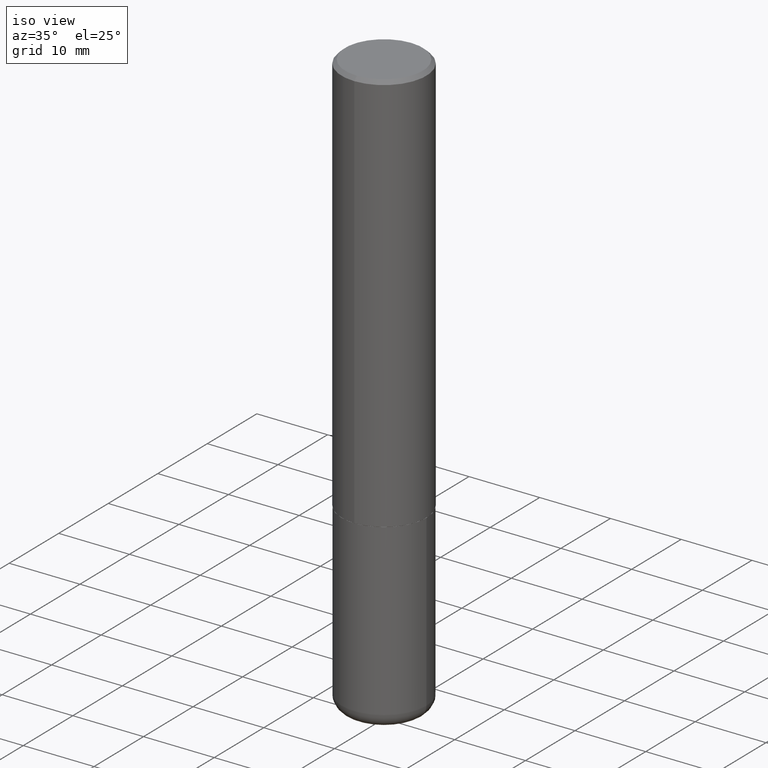
[diagram: clean part render]
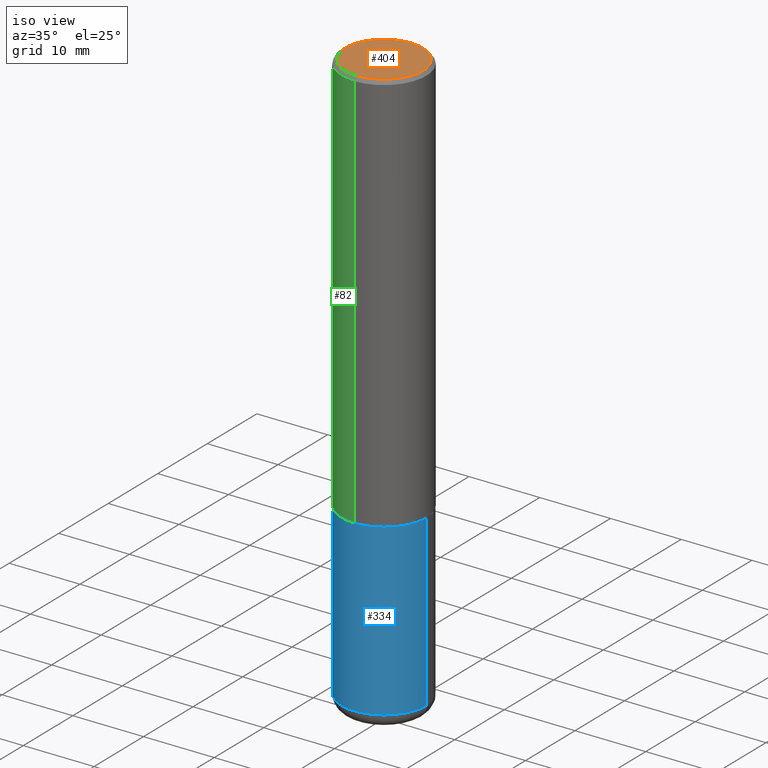
[diagram: same view with three faces highlighted in distinct colors, each labeled with its STEP entity id]
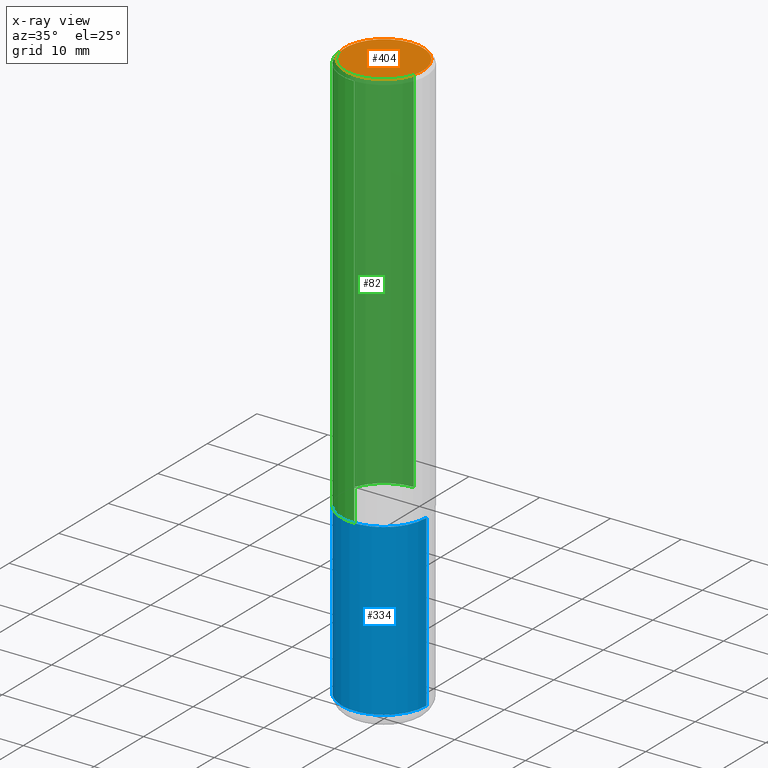
[diagram: x-ray of the same camera — body ghosted, the three highlighted faces saturated]
A machine part, iso view with three faces highlighted in distinct colors.
The next image is the same camera in x-ray (body ghosted, the three faces saturated) — at least one of them is partly hidden behind the body in this view.
Their STEP definitions:

[orange] entity #404 — the highlighted planar face has unit normal (0, -0, -1).
#8 = DIRECTION ( 'NONE',  ( -6.982962677686265922E-15, -1.000000000000000000, 3.494732472144603410E-15 ) ) ;
#17 = EDGE_CURVE ( 'NONE', #216, #379, #145, .T. ) ;
#21 = CARTESIAN_POINT ( 'NONE',  ( -1.551844647095920733E-15, -0.2162000000000002808, 4.617366936805109079E-16 ) ) ;
#23 = DIRECTION ( 'NONE',  ( 2.443198551934710321E-29, -3.494732472144603016E-15, -1.000000000000000000 ) ) ;
#36 = ORIENTED_EDGE ( 'NONE', *, *, #242, .T. ) ;
#54 = FACE_OUTER_BOUND ( 'NONE', #121, .T. ) ;
#118 = CIRCLE ( 'NONE', #222, 0.2162000000000002808 ) ;
#121 = EDGE_LOOP ( 'NONE', ( #411, #36 ) ) ;
#123 = CARTESIAN_POINT ( 'NONE',  ( 7.178715118017931868E-45, -1.026837905226585320E-30, -2.938244667971532280E-16 ) ) ;
#143 = CARTESIAN_POINT ( 'NONE',  ( 1.579546157692634608E-15, 0.2162000000000002808, -1.049385627274817561E-15 ) ) ;
#145 = CIRCLE ( 'NONE', #200, 0.2162000000000002808 ) ;
#175 = AXIS2_PLACEMENT_3D ( 'NONE', #416, #23, #410 ) ;
#200 = AXIS2_PLACEMENT_3D ( 'NONE', #123, #251, #8 ) ;
#216 = VERTEX_POINT ( 'NONE', #143 ) ;
#222 = AXIS2_PLACEMENT_3D ( 'NONE', #341, #397, #276 ) ;
#242 = EDGE_CURVE ( 'NONE', #379, #216, #118, .T. ) ;
#251 = DIRECTION ( 'NONE',  ( -2.443198551934710321E-29, 3.494732472144603410E-15, 1.000000000000000000 ) ) ;
#276 = DIRECTION ( 'NONE',  ( -6.982962677686265922E-15, -1.000000000000000000, 3.494732472144603410E-15 ) ) ;
#287 = PLANE ( 'NONE',  #175 ) ;
#341 = CARTESIAN_POINT ( 'NONE',  ( 7.178715118017931868E-45, -1.026837905226585320E-30, -2.938244667971532280E-16 ) ) ;
#379 = VERTEX_POINT ( 'NONE', #21 ) ;
#397 = DIRECTION ( 'NONE',  ( -2.443198551934710321E-29, 3.494732472144603410E-15, 1.000000000000000000 ) ) ;
#404 = ADVANCED_FACE ( 'NONE', ( #54 ), #287, .F. ) ;
#410 = DIRECTION ( 'NONE',  ( 6.982962677686265922E-15, 1.000000000000000000, -3.494732472144603016E-15 ) ) ;
#411 = ORIENTED_EDGE ( 'NONE', *, *, #17, .T. ) ;
#416 = CARTESIAN_POINT ( 'NONE',  ( 1.509716530915772690E-15, 0.2162000000000002808, -9.024733938762408486E-16 ) ) ;

[blue] entity #334 — the highlighted cylindrical surface (partial cylindrical patch) has radius 5.9995 mm, axis along (-0, 0, 1).
#6 = CARTESIAN_POINT ( 'NONE',  ( 0.2362000000000001043, -1.278370977404028805E-14, -3.189000000000000501 ) ) ;
#37 = LINE ( 'NONE', #264, #305 ) ;
#46 = CARTESIAN_POINT ( 'NONE',  ( -0.2362000000000001043, -9.456032047705438285E-15, -3.189000000000000501 ) ) ;
#47 = CARTESIAN_POINT ( 'NONE',  ( 0.000000000000000000, 0.000000000000000000, 0.000000000000000000 ) ) ;
#51 = ORIENTED_EDGE ( 'NONE', *, *, #60, .F. ) ;
#55 = VERTEX_POINT ( 'NONE', #6 ) ;
#60 = EDGE_CURVE ( 'NONE', #290, #119, #37, .T. ) ;
#66 = EDGE_CURVE ( 'NONE', #290, #55, #331, .T. ) ;
#68 = DIRECTION ( 'NONE',  ( -2.445468806185136877E-29, 3.491481338843145188E-15, 1.000000000000000000 ) ) ;
#74 = DIRECTION ( 'NONE',  ( 1.000000000000000000, -6.982962677686268288E-15, 0.000000000000000000 ) ) ;
#93 = DIRECTION ( 'NONE',  ( -2.445468806185136877E-29, 3.491481338843145188E-15, 1.000000000000000000 ) ) ;
#94 = AXIS2_PLACEMENT_3D ( 'NONE', #270, #181, #74 ) ;
#100 = DIRECTION ( 'NONE',  ( -2.445468806185136597E-29, 3.491481338843145583E-15, 1.000000000000000000 ) ) ;
#105 = CARTESIAN_POINT ( 'NONE',  ( -0.2362000000000000766, -7.806481689168991326E-15, -2.244100000000000428 ) ) ;
#119 = VERTEX_POINT ( 'NONE', #105 ) ;
#125 = EDGE_LOOP ( 'NONE', ( #51, #194, #223, #177 ) ) ;
#142 = EDGE_CURVE ( 'NONE', #55, #238, #333, .T. ) ;
#169 = CARTESIAN_POINT ( 'NONE',  ( 7.798600022924401307E-29, -1.113433398957079310E-14, -3.189000000000000501 ) ) ;
#177 = ORIENTED_EDGE ( 'NONE', *, *, #359, .F. ) ;
#179 = CARTESIAN_POINT ( 'NONE',  ( 0.2362000000000000210, -9.484609056967400443E-15, -2.244100000000000428 ) ) ;
#181 = DIRECTION ( 'NONE',  ( -2.445468806185136597E-29, 3.491481338843145583E-15, 1.000000000000000000 ) ) ;
#194 = ORIENTED_EDGE ( 'NONE', *, *, #66, .T. ) ;
#205 = CARTESIAN_POINT ( 'NONE',  ( 0.2361999999999999933, -1.649375784469496131E-15, 1.151752954443000088E-29 ) ) ;
#223 = ORIENTED_EDGE ( 'NONE', *, *, #142, .T. ) ;
#236 = DIRECTION ( 'NONE',  ( 1.000000000000000000, -6.982962677686265133E-15, 0.000000000000000000 ) ) ;
#237 = FACE_OUTER_BOUND ( 'NONE', #125, .T. ) ;
#238 = VERTEX_POINT ( 'NONE', #179 ) ;
#239 = DIRECTION ( 'NONE',  ( 1.000000000000000000, -6.982962677686266711E-15, 4.876176775795936353E-29 ) ) ;
#264 = CARTESIAN_POINT ( 'NONE',  ( -0.2361999999999999933, 1.678301941865356591E-15, -1.161852468318208757E-29 ) ) ;
#269 = CYLINDRICAL_SURFACE ( 'NONE', #375, 0.2361999999999999933 ) ;
#270 = CARTESIAN_POINT ( 'NONE',  ( 5.487876547960065873E-29, -7.835233272497903917E-15, -2.244100000000000428 ) ) ;
#278 = CIRCLE ( 'NONE', #94, 0.2362000000000000210 ) ;
#288 = VECTOR ( 'NONE', #93, 39.37007874015748143 ) ;
#290 = VERTEX_POINT ( 'NONE', #46 ) ;
#304 = DIRECTION ( 'NONE',  ( -2.445468806185136597E-29, 3.491481338843145583E-15, 1.000000000000000000 ) ) ;
#305 = VECTOR ( 'NONE', #68, 39.37007874015748143 ) ;
#331 = CIRCLE ( 'NONE', #408, 0.2361999999999999933 ) ;
#333 = LINE ( 'NONE', #205, #288 ) ;
#334 = ADVANCED_FACE ( 'NONE', ( #237 ), #269, .T. ) ;
#359 = EDGE_CURVE ( 'NONE', #119, #238, #278, .T. ) ;
#375 = AXIS2_PLACEMENT_3D ( 'NONE', #47, #304, #239 ) ;
#408 = AXIS2_PLACEMENT_3D ( 'NONE', #169, #100, #236 ) ;

[green] entity #82 — the highlighted cylindrical surface (partial cylindrical patch) has radius 5.9995 mm, axis along (-0, 0, 1).
#1 = CARTESIAN_POINT ( 'NONE',  ( -1.649375784469443080E-15, -0.2362000000000081257, -2.243099999999999206 ) ) ;
#13 = DIRECTION ( 'NONE',  ( -2.443198551934710321E-29, 3.494732472144603410E-15, 1.000000000000000000 ) ) ;
#20 = DIRECTION ( 'NONE',  ( -2.443198551934710321E-29, 3.494732472144603410E-15, 1.000000000000000000 ) ) ;
#22 = EDGE_LOOP ( 'NONE', ( #107, #225, #24, #414 ) ) ;
#24 = ORIENTED_EDGE ( 'NONE', *, *, #138, .T. ) ;
#25 = AXIS2_PLACEMENT_3D ( 'NONE', #298, #360, #137 ) ;
#28 = DIRECTION ( 'NONE',  ( -2.443198551934710321E-29, 3.494732472144603016E-15, 1.000000000000000000 ) ) ;
#67 = CARTESIAN_POINT ( 'NONE',  ( -1.649375784469496920E-15, -0.2362000000000001321, 8.254558099205557624E-16 ) ) ;
#80 = CARTESIAN_POINT ( 'NONE',  ( 1.649375784469496525E-15, 0.2361999999999999378, -0.02000000000000091288 ) ) ;
#82 = ADVANCED_FACE ( 'NONE', ( #266 ), #96, .T. ) ;
#86 = VERTEX_POINT ( 'NONE', #1 ) ;
#96 = CYLINDRICAL_SURFACE ( 'NONE', #25, 0.2362000000000001321 ) ;
#107 = ORIENTED_EDGE ( 'NONE', *, *, #373, .F. ) ;
#110 = LINE ( 'NONE', #224, #152 ) ;
#129 = VERTEX_POINT ( 'NONE', #262 ) ;
#137 = DIRECTION ( 'NONE',  ( -6.982962677686265922E-15, -1.000000000000000000, 3.494732472144603410E-15 ) ) ;
#138 = EDGE_CURVE ( 'NONE', #86, #368, #395, .T. ) ;
#152 = VECTOR ( 'NONE', #28, 39.37007874015748143 ) ;
#161 = AXIS2_PLACEMENT_3D ( 'NONE', #339, #13, #206 ) ;
#201 = CIRCLE ( 'NONE', #273, 0.2362000000000002709 ) ;
#206 = DIRECTION ( 'NONE',  ( -6.982962677686265922E-15, -1.000000000000000000, 3.487819265831411744E-15 ) ) ;
#209 = VECTOR ( 'NONE', #387, 39.37007874015748143 ) ;
#212 = EDGE_CURVE ( 'NONE', #250, #368, #267, .T. ) ;
#224 = CARTESIAN_POINT ( 'NONE',  ( 1.678301941865357380E-15, 0.2362000000000001321, -8.254558099205557624E-16 ) ) ;
#225 = ORIENTED_EDGE ( 'NONE', *, *, #363, .T. ) ;
#245 = CARTESIAN_POINT ( 'NONE',  ( -1.620449627073635079E-15, -0.2362000000000000766, -0.01999999999999926489 ) ) ;
#250 = VERTEX_POINT ( 'NONE', #80 ) ;
#262 = CARTESIAN_POINT ( 'NONE',  ( 1.678301941865385582E-15, 0.2361999999999924160, -2.243100000000000982 ) ) ;
#266 = FACE_OUTER_BOUND ( 'NONE', #22, .T. ) ;
#267 = CIRCLE ( 'NONE', #161, 0.2361999999999999933 ) ;
#273 = AXIS2_PLACEMENT_3D ( 'NONE', #400, #20, #398 ) ;
#298 = CARTESIAN_POINT ( 'NONE',  ( 0.000000000000000000, 0.000000000000000000, 0.000000000000000000 ) ) ;
#339 = CARTESIAN_POINT ( 'NONE',  ( 4.886397103869442398E-31, -6.989464944289237832E-17, -0.02000000000000009062 ) ) ;
#360 = DIRECTION ( 'NONE',  ( -2.443198551934710321E-29, 3.494732472144603410E-15, 1.000000000000000000 ) ) ;
#363 = EDGE_CURVE ( 'NONE', #129, #86, #201, .T. ) ;
#368 = VERTEX_POINT ( 'NONE', #245 ) ;
#373 = EDGE_CURVE ( 'NONE', #129, #250, #110, .T. ) ;
#387 = DIRECTION ( 'NONE',  ( -2.443198551934710321E-29, 3.494732472144603016E-15, 1.000000000000000000 ) ) ;
#395 = LINE ( 'NONE', #67, #209 ) ;
#398 = DIRECTION ( 'NONE',  ( -6.982962677686265922E-15, -1.000000000000000000, 3.469747663417773058E-15 ) ) ;
#400 = CARTESIAN_POINT ( 'NONE',  ( 5.480338671844748839E-29, -7.839034408267561952E-15, -2.243100000000000094 ) ) ;
#414 = ORIENTED_EDGE ( 'NONE', *, *, #212, .F. ) ;